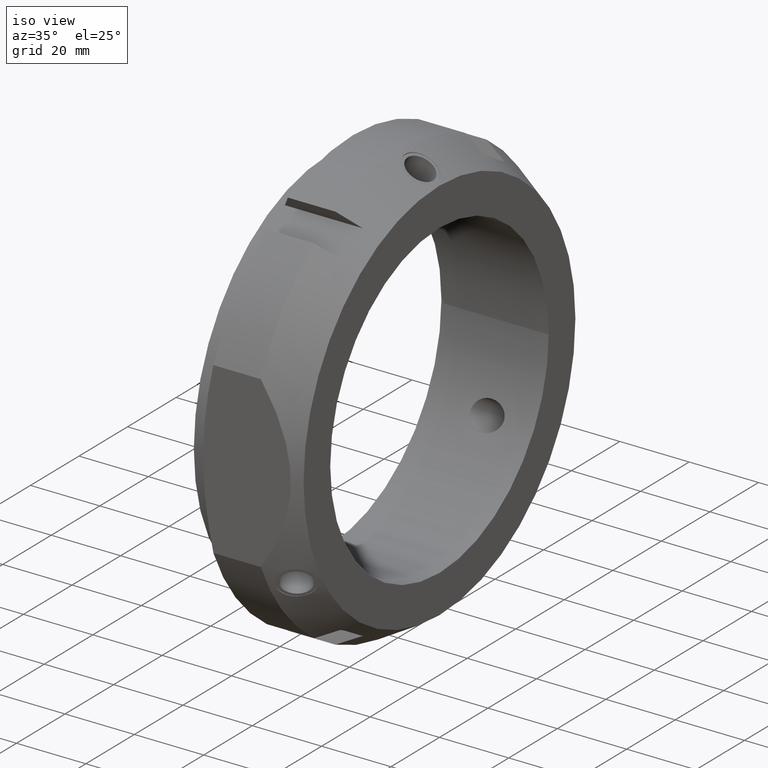
[diagram: clean part render]
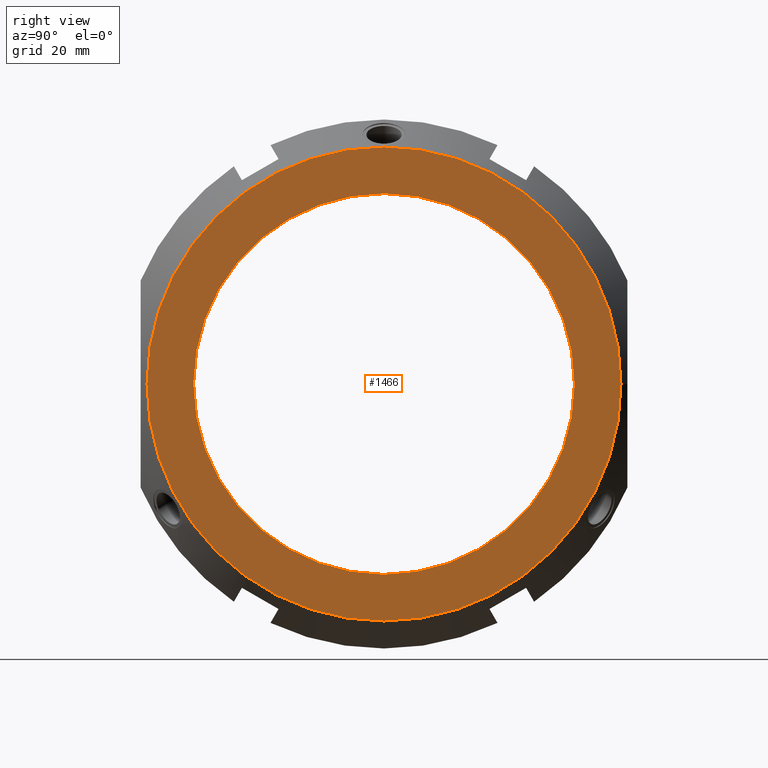
[diagram: tour spotlight — one face highlighted and labeled with its STEP entity id]
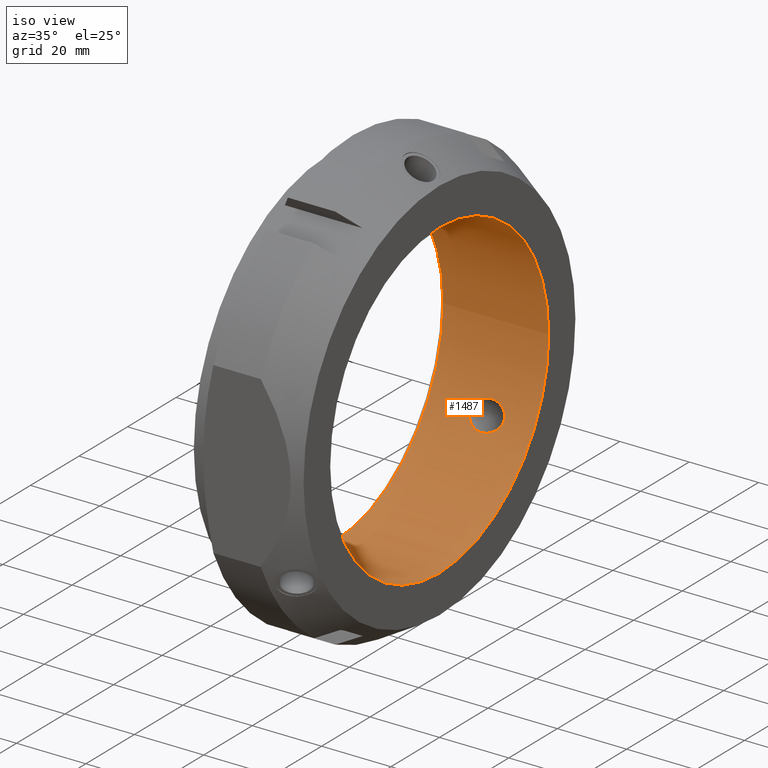
[diagram: tour spotlight — one face highlighted and labeled with its STEP entity id]
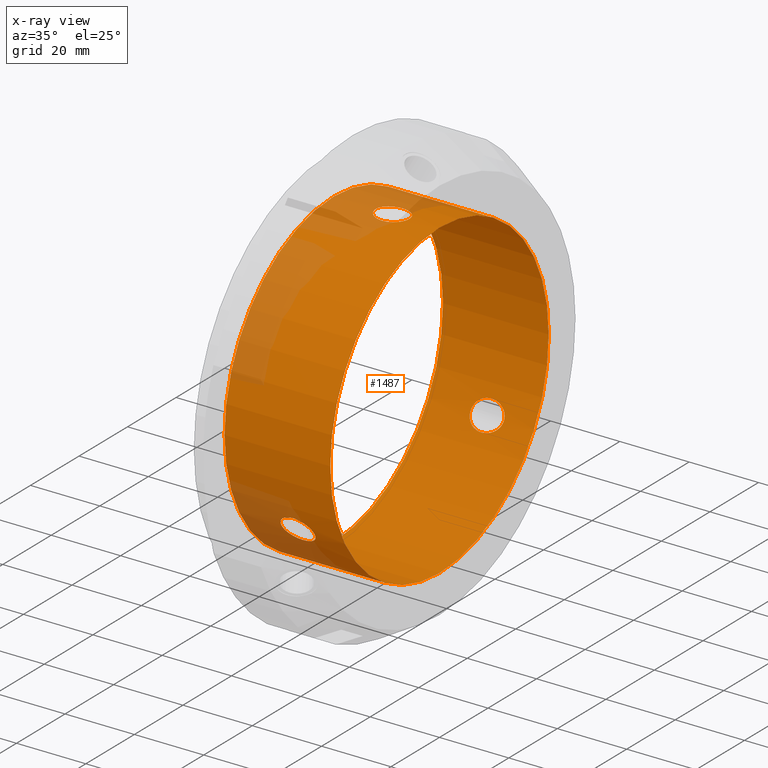
[diagram: x-ray of the same camera — body ghosted, this tour face saturated]
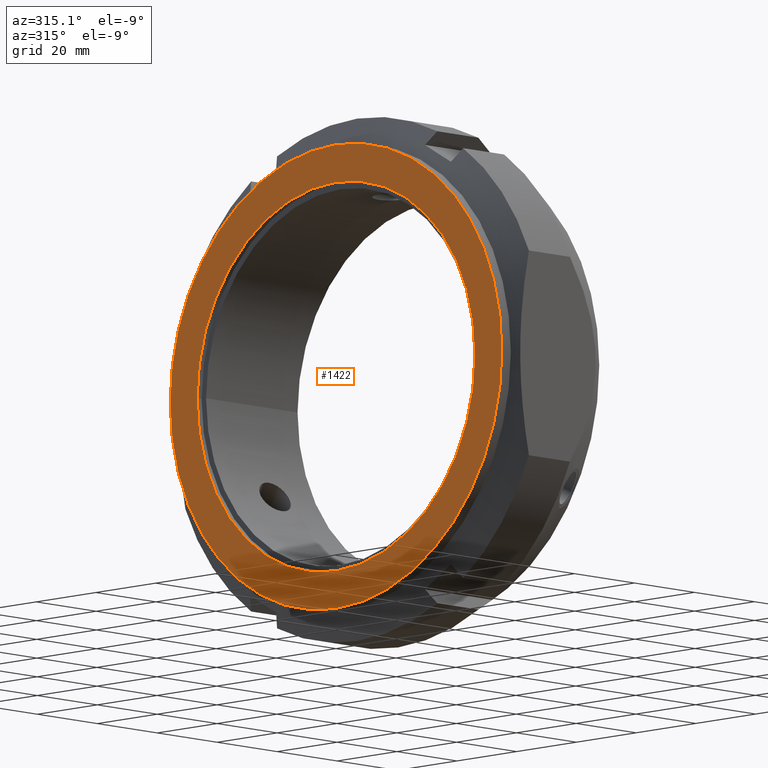
[diagram: tour spotlight — one face highlighted and labeled with its STEP entity id]
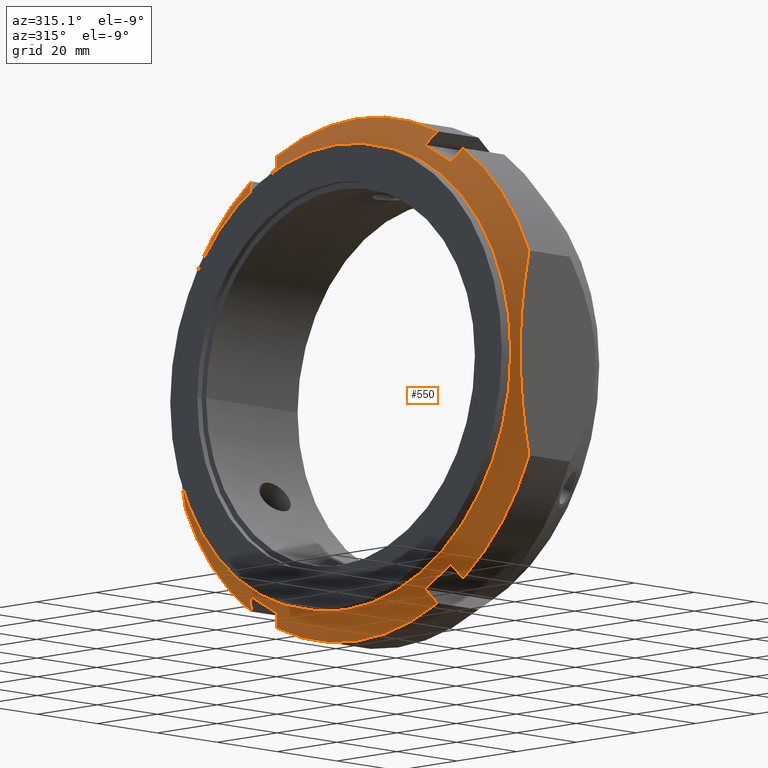
[diagram: tour spotlight — one face highlighted and labeled with its STEP entity id]
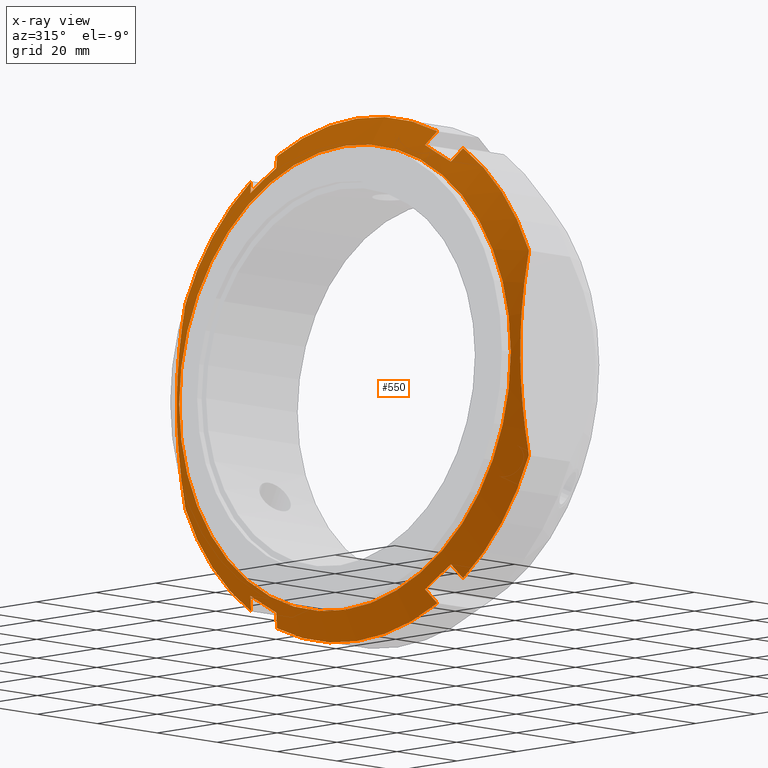
[diagram: x-ray of the same camera — body ghosted, this tour face saturated]
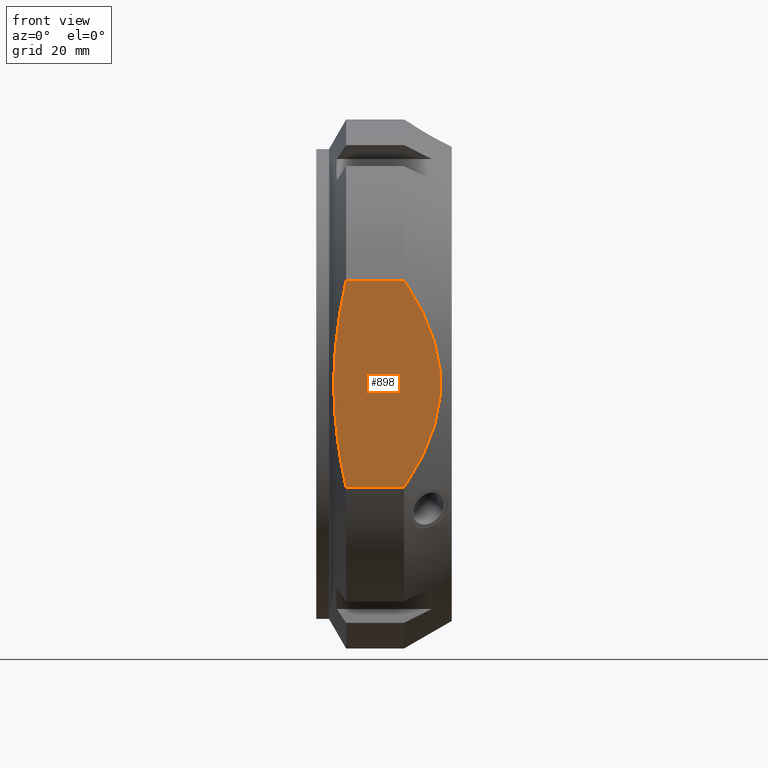
[diagram: tour spotlight — one face highlighted and labeled with its STEP entity id]
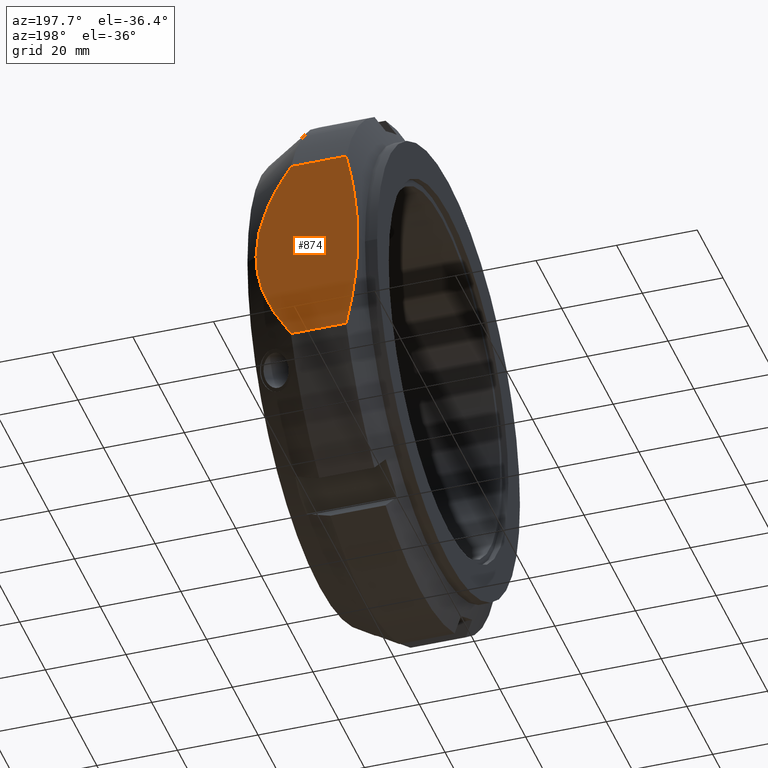
[diagram: tour spotlight — one face highlighted and labeled with its STEP entity id]
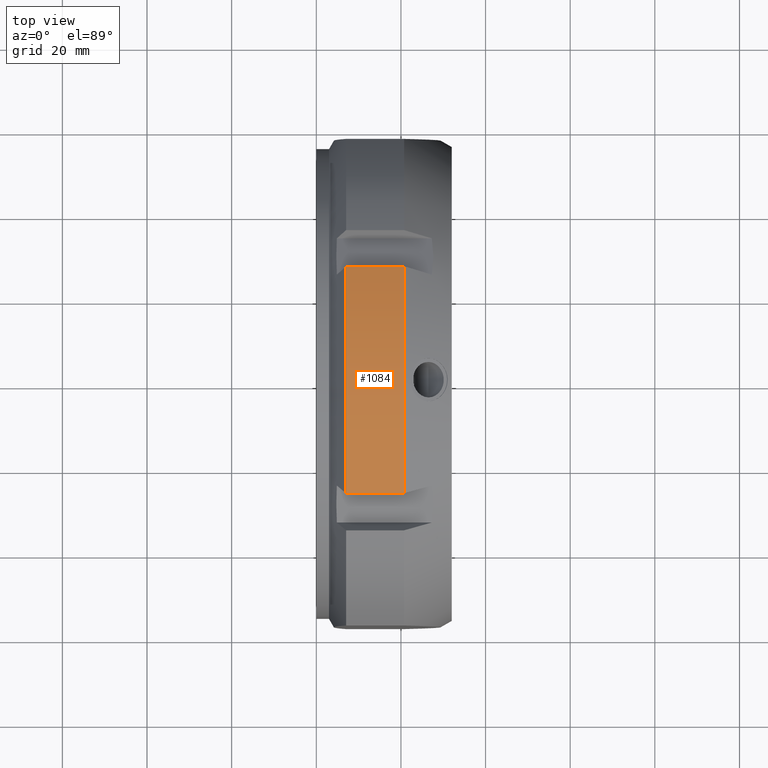
[diagram: tour spotlight — one face highlighted and labeled with its STEP entity id]
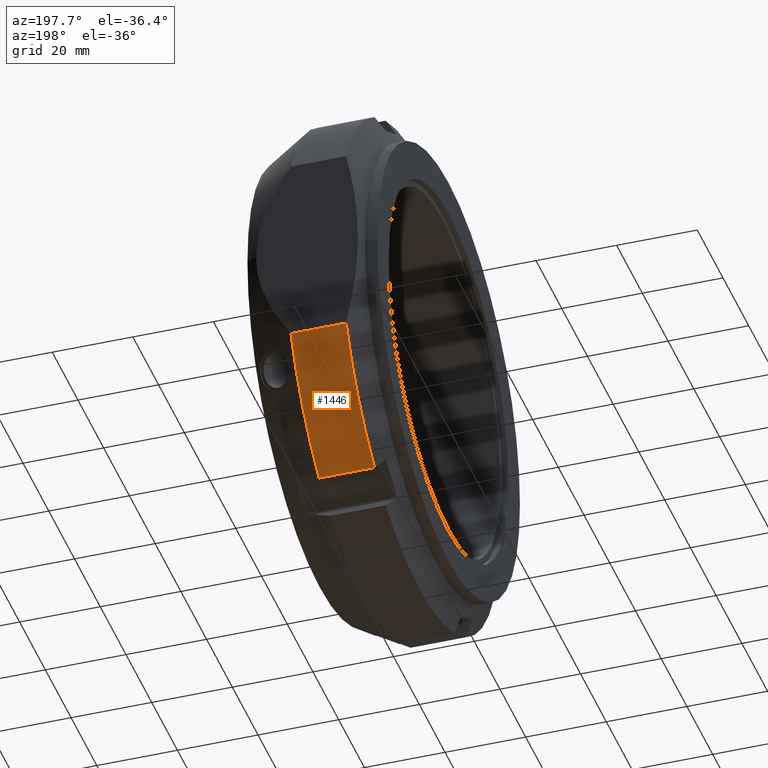
[diagram: tour spotlight — one face highlighted and labeled with its STEP entity id]
A machine part: a face-by-face anatomy tour. The part has 37 B-rep faces; the first image is the clean iso view, then the 8 largest visible faces are spotlighted one at a time (largest first), each with its STEP entity span.

Face 1 — right view, entity #1466. In plain terms, the highlighted planar face has unit normal (1, 0, 0).
Definition (entity closure, byte-faithful):
#938=CARTESIAN_POINT('',(31.999999999999989,56.000000000000007,0.0));
#939=VERTEX_POINT('',#938);
#940=CARTESIAN_POINT('',(31.999999999999989,0.0,0.0));
#941=DIRECTION('',(1.0,0.0,0.0));
#942=DIRECTION('',(0.0,1.0,0.0));
#943=AXIS2_PLACEMENT_3D('',#940,#941,#942);
#944=CIRCLE('',#943,56.000000000000007);
#945=EDGE_CURVE('',#939,#939,#944,.T.);
#1447=CARTESIAN_POINT('',(31.999999999999989,50.500000000000007,0.0));
#1448=DIRECTION('',(1.0,0.0,0.0));
#1449=DIRECTION('',(0.0,0.0,-1.0));
#1450=AXIS2_PLACEMENT_3D('',#1447,#1448,#1449);
#1451=PLANE('',#1450);
#1452=ORIENTED_EDGE('',*,*,#945,.T.);
#1453=EDGE_LOOP('',(#1452));
#1454=FACE_OUTER_BOUND('',#1453,.T.);
#1455=CARTESIAN_POINT('',(31.999999999999989,45.0,0.0));
#1456=VERTEX_POINT('',#1455);
#1457=CARTESIAN_POINT('',(31.999999999999989,0.0,0.0));
#1458=DIRECTION('',(1.0,0.0,0.0));
#1459=DIRECTION('',(0.0,1.0,0.0));
#1460=AXIS2_PLACEMENT_3D('',#1457,#1458,#1459);
#1461=CIRCLE('',#1460,45.0);
#1462=EDGE_CURVE('',#1456,#1456,#1461,.T.);
#1463=ORIENTED_EDGE('',*,*,#1462,.F.);
#1464=EDGE_LOOP('',(#1463));
#1465=FACE_BOUND('',#1464,.T.);
#1466=ADVANCED_FACE('',(#1454,#1465),#1451,.T.);

Face 2 — iso view, entity #1487. An x-ray twin of the same camera follows (body ghosted, this face saturated) — the face is partly hidden behind the body. In plain terms, the highlighted cylindrical surface (bore or boss wall) has radius 45 mm, axis along (1, 0, 0).
Definition (entity closure, byte-faithful):
#1090=CARTESIAN_POINT('',(18.368002474099164,40.896003711148722,-18.775432896679366));
#1091=VERTEX_POINT('',#1090);
#1092=CARTESIAN_POINT('',(18.368002474099164,40.896003711148722,-18.775432896679366));
#1093=CARTESIAN_POINT('',(18.96680388677947,40.896003711148722,-18.775432896679366));
#1094=CARTESIAN_POINT('',(19.611155074245769,40.853826474595451,-18.868214960374004));
#1095=CARTESIAN_POINT('',(20.820477676763005,40.674783163468788,-19.251147711162591));
#1096=CARTESIAN_POINT('',(21.385471448853718,40.537575629816132,-19.541068030448166));
#1097=CARTESIAN_POINT('',(22.264662890841819,40.211127066054345,-20.203718014746237));
#1098=CARTESIAN_POINT('',(22.651019512990722,40.00528452057879,-20.611705088451412));
#1099=CARTESIAN_POINT('',(23.177631100391469,39.5231338797999,-21.521781198993537));
#1100=CARTESIAN_POINT('',(23.316647968265482,39.245905171329511,-22.024098254227145));
#1101=CARTESIAN_POINT('',(23.316647968265482,38.709033089293676,-22.953987977478498));
#1102=CARTESIAN_POINT('',(23.189932319263441,38.425336776092564,-23.425223165847822));
#1103=CARTESIAN_POINT('',(22.704986786179091,37.897963783409367,-24.269155870931087));
#1104=CARTESIAN_POINT('',(22.347945479975294,37.65449878975452,-24.642668029173571));
#1105=CARTESIAN_POINT('',(21.492860729635023,37.230007877335801,-25.280423644847943));
#1106=CARTESIAN_POINT('',(20.912370076078087,37.033526621451209,-25.565015195072661));
#1107=CARTESIAN_POINT('',(19.661901036169233,36.772290543542518,-25.939366682661952));
#1108=CARTESIAN_POINT('',(18.991865362355966,36.708003711148713,-26.029261678777821));
#1109=CARTESIAN_POINT('',(17.766720556365058,36.708003711148713,-26.029261678777821));
#1110=CARTESIAN_POINT('',(17.119670879997855,36.768090637763819,-25.945266801733737));
#1111=CARTESIAN_POINT('',(15.919093944900064,37.022478794806673,-25.580958198910277));
#1112=CARTESIAN_POINT('',(15.365754979470747,37.216688365938715,-25.299960301400588));
#1113=CARTESIAN_POINT('',(14.548439994724951,37.643449260062397,-24.659651414139539));
#1114=CARTESIAN_POINT('',(14.210611589867227,37.892033344984753,-24.27853645333867));
#1115=CARTESIAN_POINT('',(13.758760603790851,38.42579011830076,-23.424606229578849));
#1116=CARTESIAN_POINT('',(13.644876258800863,38.710507878968016,-22.951433566832058));
#1117=CARTESIAN_POINT('',(13.644876258800863,39.231778461631436,-22.048566433167977));
#1118=CARTESIAN_POINT('',(13.758760603790849,39.499199127612869,-21.565407288148123));
#1119=CARTESIAN_POINT('',(14.210611589867227,39.971846007790205,-20.67619525113453));
#1120=CARTESIAN_POINT('',(14.548439994724944,40.177609203144883,-20.270357638214826));
#1121=CARTESIAN_POINT('',(15.365754979470745,40.518752518720063,-19.580617418931428));
#1122=CARTESIAN_POINT('',(15.919093944900066,40.664999050807431,-19.27192804791817));
#1123=CARTESIAN_POINT('',(17.119670879997855,40.853305477148339,-18.869467140085419));
#1124=CARTESIAN_POINT('',(17.766720556365058,40.89600371114873,-18.775432896679366));
#1125=CARTESIAN_POINT('',(18.368002474099164,40.89600371114873,-18.775432896679366));
#1126=B_SPLINE_CURVE_WITH_KNOTS('',3,(#1092,#1093,#1094,#1095,#1096,#1097,#1098,#1099,#1100,#1101,#1102,#1103,#1104,#1105,#1106,#1107,#1108,#1109,#1110,#1111,#1112,#1113,#1114,#1115,#1116,#1117,#1118,#1119,#1120,#1121,#1122,#1123,#1124,#1125),.UNSPECIFIED.,.T.,.U.,(4,2,2,2,2,2,2,2,2,2,2,2,2,2,2,2,4),(0.0,0.179640423804092,0.359280847608184,0.524138048226052,0.68899524884392,0.846261297447552,1.003527346051184,1.190686212528225,1.377845079005266,1.558229654325498,1.738614229645731,1.894995404444758,2.051376579243786,2.207757754042814,2.364138928841842,2.544523504162075,2.724908079482307),.UNSPECIFIED.);
#1127=EDGE_CURVE('',#1091,#1091,#1126,.T.);
#1180=CARTESIAN_POINT('',(18.368002474099171,-36.708003711148734,-26.029261678777793));
#1181=VERTEX_POINT('',#1180);
#1182=CARTESIAN_POINT('',(18.368002474099171,-36.708003711148734,-26.029261678777793));
#1183=CARTESIAN_POINT('',(18.991865362355973,-36.708003711148734,-26.029261678777793));
#1184=CARTESIAN_POINT('',(19.661901036169244,-36.772290543542539,-25.939366682661923));
#1185=CARTESIAN_POINT('',(20.912370076078094,-37.03352662145123,-25.565015195072633));
#1186=CARTESIAN_POINT('',(21.492860729635034,-37.230007877335829,-25.280423644847918));
#1187=CARTESIAN_POINT('',(22.347945479975305,-37.654498789754548,-24.642668029173542));
#1188=CARTESIAN_POINT('',(22.704986786179099,-37.897963783409381,-24.269155870931055));
#1189=CARTESIAN_POINT('',(23.189932319263441,-38.425336776092578,-23.425223165847797));
#1190=CARTESIAN_POINT('',(23.316647968265485,-38.709033089293698,-22.953987977478466));
#1191=CARTESIAN_POINT('',(23.316647968265485,-39.233253251305804,-22.046012022521502));
#1192=CARTESIAN_POINT('',(23.189932319263441,-39.499506738990227,-21.564706214144692));
#1193=CARTESIAN_POINT('',(22.704986786179091,-39.966687404335246,-20.686021452669586));
#1194=CARTESIAN_POINT('',(22.347945479975294,-40.168425925168179,-20.288418504111043));
#1195=CARTESIAN_POINT('',(21.492860729635023,-40.508493033539011,-19.601920782443607));
#1196=CARTESIAN_POINT('',(20.912370076078087,-40.656715917793719,-19.289467248367721));
#1197=CARTESIAN_POINT('',(19.661901036169237,-40.850295777036187,-18.87605442471914));
#1198=CARTESIAN_POINT('',(18.991865362355973,-40.896003711148737,-18.775432896679337));
#1199=CARTESIAN_POINT('',(17.766720556365062,-40.896003711148737,-18.775432896679337));
#1200=CARTESIAN_POINT('',(17.119670879997859,-40.853305477148361,-18.869467140085387));
#1201=CARTESIAN_POINT('',(15.919093944900066,-40.664999050807452,-19.271928047918138));
#1202=CARTESIAN_POINT('',(15.365754979470749,-40.518752518720063,-19.5806174189314));
#1203=CARTESIAN_POINT('',(14.548439994724948,-40.177609203144904,-20.270357638214801));
#1204=CARTESIAN_POINT('',(14.210611589867231,-39.971846007790212,-20.676195251134502));
#1205=CARTESIAN_POINT('',(13.758760603790851,-39.499199127612876,-21.565407288148094));
#1206=CARTESIAN_POINT('',(13.644876258800871,-39.231778461631464,-22.048566433167949));
#1207=CARTESIAN_POINT('',(13.644876258800869,-38.710507878968038,-22.951433566832034));
#1208=CARTESIAN_POINT('',(13.758760603790854,-38.425790118300782,-23.424606229578817));
#1209=CARTESIAN_POINT('',(14.210611589867231,-37.892033344984775,-24.278536453338646));
#1210=CARTESIAN_POINT('',(14.548439994724948,-37.643449260062418,-24.659651414139514));
#1211=CARTESIAN_POINT('',(15.365754979470747,-37.216688365938737,-25.299960301400567));
#1212=CARTESIAN_POINT('',(15.919093944900069,-37.022478794806695,-25.580958198910245));
#1213=CARTESIAN_POINT('',(17.119670879997862,-36.768090637763834,-25.945266801733705));
#1214=CARTESIAN_POINT('',(17.766720556365062,-36.708003711148734,-26.029261678777797));
#1215=CARTESIAN_POINT('',(18.368002474099171,-36.708003711148734,-26.029261678777797));
#1216=B_SPLINE_CURVE_WITH_KNOTS('',3,(#1182,#1183,#1184,#1185,#1186,#1187,#1188,#1189,#1190,#1191,#1192,#1193,#1194,#1195,#1196,#1197,#1198,#1199,#1200,#1201,#1202,#1203,#1204,#1205,#1206,#1207,#1208,#1209,#1210,#1211,#1212,#1213,#1214,#1215),.UNSPECIFIED.,.T.,.U.,(4,2,2,2,2,2,2,2,2,2,2,2,2,2,2,2,4),(0.0,0.187158866477041,0.374317732954082,0.531583781557714,0.688849830161346,0.846115878764979,1.003381927368611,1.190540793845651,1.377699660322691,1.558084235642924,1.738468810963157,1.894849985762185,2.051231160561213,2.20761233536024,2.363993510159268,2.544378085479501,2.724762660799733),.UNSPECIFIED.);
#1217=EDGE_CURVE('',#1181,#1181,#1216,.T.);
#1270=CARTESIAN_POINT('',(18.368002474099171,-4.188,44.804694575457155));
#1271=VERTEX_POINT('',#1270);
#1272=CARTESIAN_POINT('',(18.368002474099171,-4.188,44.804694575457155));
#1273=CARTESIAN_POINT('',(18.991865362355973,-4.188,44.804694575457155));
#1274=CARTESIAN_POINT('',(19.661901036169244,-4.078005233493646,44.815421107381084));
#1275=CARTESIAN_POINT('',(20.912370076078091,-3.623189296342482,44.854482443440375));
#1276=CARTESIAN_POINT('',(21.492860729635037,-3.278485156203195,44.882344427291549));
#1277=CARTESIAN_POINT('',(22.347945479975309,-2.513927135413639,44.931086533284613));
#1278=CARTESIAN_POINT('',(22.704986786179091,-2.068723620925873,44.955177323600665));
#1279=CARTESIAN_POINT('',(23.189932319263441,-1.074169962897646,44.989929379992518));
#1280=CARTESIAN_POINT('',(23.316647968265485,-0.524220162012107,45.0));
#1281=CARTESIAN_POINT('',(23.316647968265485,0.524220162012106,45.0));
#1282=CARTESIAN_POINT('',(23.189932319263441,1.074169962897646,44.989929379992518));
#1283=CARTESIAN_POINT('',(22.704986786179091,2.068723620925872,44.955177323600665));
#1284=CARTESIAN_POINT('',(22.347945479975309,2.513927135413639,44.931086533284613));
#1285=CARTESIAN_POINT('',(21.492860729635037,3.278485156203195,44.882344427291549));
#1286=CARTESIAN_POINT('',(20.912370076078091,3.623189296342482,44.854482443440375));
#1287=CARTESIAN_POINT('',(19.661901036169244,4.078005233493646,44.815421107381084));
#1288=CARTESIAN_POINT('',(18.991865362355973,4.188,44.804694575457155));
#1289=CARTESIAN_POINT('',(17.766720556365065,4.188000000000001,44.804694575457155));
#1290=CARTESIAN_POINT('',(17.119670879997862,4.085214839384525,44.814733941819121));
#1291=CARTESIAN_POINT('',(15.919093944900073,3.642520256000764,44.852886246828405));
#1292=CARTESIAN_POINT('',(15.365754979470751,3.302064152781345,44.880577720331999));
#1293=CARTESIAN_POINT('',(14.548439994724953,2.534159943082487,44.930009052354336));
#1294=CARTESIAN_POINT('',(14.210611589867234,2.079812662805446,44.954731704473161));
#1295=CARTESIAN_POINT('',(13.758760603790858,1.073409009312102,44.990013517726936));
#1296=CARTESIAN_POINT('',(13.644876258800869,0.521270582663428,45.0));
#1297=CARTESIAN_POINT('',(13.644876258800869,-0.538823214318436,45.0));
#1298=CARTESIAN_POINT('',(13.76646722392794,-1.107999042300992,44.989318428746692));
#1299=CARTESIAN_POINT('',(14.246059370267826,-2.139672810594604,44.952065969848761));
#1300=CARTESIAN_POINT('',(14.603954150568343,-2.602243316961449,44.926137801471455));
#1301=CARTESIAN_POINT('',(15.439417992272944,-3.350448686399184,44.876792884315023));
#1302=CARTESIAN_POINT('',(15.982688765695007,-3.672600700259783,44.850374760406488));
#1303=CARTESIAN_POINT('',(17.155184838386617,-4.0910924552728,44.814139226938238));
#1304=CARTESIAN_POINT('',(17.784218888821048,-4.188,44.804694575457162));
#1305=CARTESIAN_POINT('',(18.368002474099175,-4.188,44.804694575457162));
#1306=B_SPLINE_CURVE_WITH_KNOTS('',3,(#1272,#1273,#1274,#1275,#1276,#1277,#1278,#1279,#1280,#1281,#1282,#1283,#1284,#1285,#1286,#1287,#1288,#1289,#1290,#1291,#1292,#1293,#1294,#1295,#1296,#1297,#1298,#1299,#1300,#1301,#1302,#1303,#1304,#1305),.UNSPECIFIED.,.T.,.U.,(4,2,2,2,2,2,2,2,2,2,2,2,2,2,2,2,4),(0.0,0.187158866477041,0.374317732954082,0.531583781557714,0.688849830161346,0.846115878764978,1.00338192736861,1.190540793845652,1.377699660322693,1.558084235642925,1.738468810963158,1.894849985762186,2.051231160561214,2.212878124856745,2.374525089152276,2.549660164735714,2.724795240319152),.UNSPECIFIED.);
#1307=EDGE_CURVE('',#1271,#1271,#1306,.T.);
#1371=CARTESIAN_POINT('',(1.499999999999988,45.0,0.0));
#1372=VERTEX_POINT('',#1371);
#1373=CARTESIAN_POINT('',(1.499999999999988,0.0,0.0));
#1374=DIRECTION('',(1.0,0.0,0.0));
#1375=DIRECTION('',(0.0,1.0,0.0));
#1376=AXIS2_PLACEMENT_3D('',#1373,#1374,#1375);
#1377=CIRCLE('',#1376,45.0);
#1378=EDGE_CURVE('',#1372,#1372,#1377,.T.);
#1455=CARTESIAN_POINT('',(31.999999999999989,45.0,0.0));
#1456=VERTEX_POINT('',#1455);
#1457=CARTESIAN_POINT('',(31.999999999999989,0.0,0.0));
#1458=DIRECTION('',(1.0,0.0,0.0));
#1459=DIRECTION('',(0.0,1.0,0.0));
#1460=AXIS2_PLACEMENT_3D('',#1457,#1458,#1459);
#1461=CIRCLE('',#1460,45.0);
#1462=EDGE_CURVE('',#1456,#1456,#1461,.T.);
#1467=CARTESIAN_POINT('',(16.749999999999986,0.0,0.0));
#1468=DIRECTION('',(1.0,0.0,0.0));
#1469=DIRECTION('',(0.0,1.0,0.0));
#1470=AXIS2_PLACEMENT_3D('',#1467,#1468,#1469);
#1471=CYLINDRICAL_SURFACE('',#1470,45.0);
#1472=ORIENTED_EDGE('',*,*,#1378,.F.);
#1473=EDGE_LOOP('',(#1472));
#1474=FACE_OUTER_BOUND('',#1473,.T.);
#1475=ORIENTED_EDGE('',*,*,#1127,.T.);
#1476=EDGE_LOOP('',(#1475));
#1477=FACE_BOUND('',#1476,.T.);
#1478=ORIENTED_EDGE('',*,*,#1217,.T.);
#1479=EDGE_LOOP('',(#1478));
#1480=FACE_BOUND('',#1479,.T.);
#1481=ORIENTED_EDGE('',*,*,#1307,.T.);
#1482=EDGE_LOOP('',(#1481));
#1483=FACE_BOUND('',#1482,.T.);
#1484=ORIENTED_EDGE('',*,*,#1462,.T.);
#1485=EDGE_LOOP('',(#1484));
#1486=FACE_BOUND('',#1485,.T.);
#1487=ADVANCED_FACE('',(#1474,#1477,#1480,#1483,#1486),#1471,.F.);

Face 3 — auxiliary view, entity #1422. In plain terms, the highlighted planar face has unit normal (-1, 0, 0).
Definition (entity closure, byte-faithful):
#1388=CARTESIAN_POINT('',(-1.332268E-014,46.5,0.0));
#1389=VERTEX_POINT('',#1388);
#1390=CARTESIAN_POINT('',(-1.332268E-014,0.0,0.0));
#1391=DIRECTION('',(1.0,0.0,0.0));
#1392=DIRECTION('',(0.0,1.0,0.0));
#1393=AXIS2_PLACEMENT_3D('',#1390,#1391,#1392);
#1394=CIRCLE('',#1393,46.5);
#1395=EDGE_CURVE('',#1389,#1389,#1394,.T.);
#1403=CARTESIAN_POINT('',(-1.554312E-014,51.000000000000007,0.0));
#1404=DIRECTION('',(-1.0,0.0,0.0));
#1405=DIRECTION('',(0.0,0.0,1.0));
#1406=AXIS2_PLACEMENT_3D('',#1403,#1404,#1405);
#1407=PLANE('',#1406);
#1408=CARTESIAN_POINT('',(-1.776357E-014,55.500000000000007,0.0));
#1409=VERTEX_POINT('',#1408);
#1410=CARTESIAN_POINT('',(-1.776357E-014,0.0,0.0));
#1411=DIRECTION('',(1.0,0.0,0.0));
#1412=DIRECTION('',(0.0,1.0,0.0));
#1413=AXIS2_PLACEMENT_3D('',#1410,#1411,#1412);
#1414=CIRCLE('',#1413,55.500000000000007);
#1415=EDGE_CURVE('',#1409,#1409,#1414,.T.);
#1416=ORIENTED_EDGE('',*,*,#1415,.F.);
#1417=EDGE_LOOP('',(#1416));
#1418=FACE_OUTER_BOUND('',#1417,.T.);
#1419=ORIENTED_EDGE('',*,*,#1395,.T.);
#1420=EDGE_LOOP('',(#1419));
#1421=FACE_BOUND('',#1420,.T.);
#1422=ADVANCED_FACE('',(#1418,#1421),#1407,.T.);

Face 4 — auxiliary view, entity #550. An x-ray twin of the same camera follows (body ghosted, this face saturated) — the face is partly hidden behind the body. In plain terms, the highlighted conical surface has half-angle 60 deg.
Definition (entity closure, byte-faithful):
#73=CARTESIAN_POINT('',(4.855191768571913,33.580127018922141,-48.162486121389691));
#74=VERTEX_POINT('',#73);
#75=CARTESIAN_POINT('',(4.855191768571915,24.919872981077752,-53.162486121389691));
#76=VERTEX_POINT('',#75);
#77=CARTESIAN_POINT('',(4.855191768571913,33.580127018922141,-48.162486121389691));
#78=CARTESIAN_POINT('',(4.609357177907528,29.249999999902883,-50.662486121445738));
#79=CARTESIAN_POINT('',(4.855191768571915,24.919872981077752,-53.162486121389691));
#87=(BOUNDED_CURVE()B_SPLINE_CURVE(2,(#77,#78,#79),.UNSPECIFIED.,.F.,.U.)B_SPLINE_CURVE_WITH_KNOTS((3,3),(1.69309888544888,2.731077120694343),.UNSPECIFIED.)CURVE()GEOMETRIC_REPRESENTATION_ITEM()RATIONAL_B_SPLINE_CURVE((1.032306180598916,1.036069887777157,1.032306180598916))REPRESENTATION_ITEM(''));
#88=EDGE_CURVE('',#74,#76,#87,.T.);
#127=CARTESIAN_POINT('',(7.04145188432735,26.819712467020537,-56.453104637268119));
#128=VERTEX_POINT('',#127);
#129=CARTESIAN_POINT('',(4.855191768571915,24.919872981077752,-53.162486121389691));
#130=CARTESIAN_POINT('',(5.913938098493393,25.840117148710327,-54.756395775098234));
#131=CARTESIAN_POINT('',(7.04145188432735,26.819712467020533,-56.453104637268112));
#139=(BOUNDED_CURVE()B_SPLINE_CURVE(2,(#129,#130,#131),.UNSPECIFIED.,.F.,.U.)B_SPLINE_CURVE_WITH_KNOTS((3,3),(0.695274858773223,1.111675363263336),.UNSPECIFIED.)CURVE()GEOMETRIC_REPRESENTATION_ITEM()RATIONAL_B_SPLINE_CURVE((1.001642168767385,1.001312832283511,1.0))REPRESENTATION_ITEM(''));
#140=EDGE_CURVE('',#76,#128,#139,.T.);
#172=CARTESIAN_POINT('',(7.041451884327343,35.479966504864912,-51.453104637268126));
#173=VERTEX_POINT('',#172);
#174=CARTESIAN_POINT('',(7.04145188432735,35.479966504864919,-51.45310463726814));
#175=CARTESIAN_POINT('',(5.913938098352931,34.500371186432545,-49.756395774886649));
#176=CARTESIAN_POINT('',(4.855191768571913,33.580127018922141,-48.162486121389691));
#184=(BOUNDED_CURVE()B_SPLINE_CURVE(2,(#174,#175,#176),.UNSPECIFIED.,.F.,.U.)B_SPLINE_CURVE_WITH_KNOTS((3,3),(0.0,0.41640050440789),.UNSPECIFIED.)CURVE()GEOMETRIC_REPRESENTATION_ITEM()RATIONAL_B_SPLINE_CURVE((1.0,1.001312832310239,1.001642168801012))REPRESENTATION_ITEM(''));
#185=EDGE_CURVE('',#173,#74,#184,.T.);
#217=CARTESIAN_POINT('',(4.85519176857192,-33.580127018922205,-48.162486121389662));
#218=VERTEX_POINT('',#217);
#219=CARTESIAN_POINT('',(7.041451884327348,-35.47996650486499,-51.453104637268083));
#220=VERTEX_POINT('',#219);
#221=CARTESIAN_POINT('',(4.85519176857192,-33.580127018922205,-48.162486121389662));
#222=CARTESIAN_POINT('',(5.913938098776366,-34.500371186800891,-49.756395775524467));
#223=CARTESIAN_POINT('',(7.04145188432735,-35.47996650486499,-51.453104637268083));
#231=(BOUNDED_CURVE()B_SPLINE_CURVE(2,(#221,#222,#223),.UNSPECIFIED.,.F.,.U.)B_SPLINE_CURVE_WITH_KNOTS((3,3),(0.695274858594388,1.111675363263336),.UNSPECIFIED.)CURVE()GEOMETRIC_REPRESENTATION_ITEM()RATIONAL_B_SPLINE_CURVE((1.001642168720913,1.001312832246696,1.0))REPRESENTATION_ITEM(''));
#232=EDGE_CURVE('',#218,#220,#231,.T.);
#271=CARTESIAN_POINT('',(7.041451884327347,-26.819712467020601,-56.45310463726809));
#272=VERTEX_POINT('',#271);
#273=CARTESIAN_POINT('',(4.855191768571918,-24.919872981077816,-53.162486121389662));
#274=VERTEX_POINT('',#273);
#275=CARTESIAN_POINT('',(7.04145188432735,-26.819712467020604,-56.45310463726809));
#276=CARTESIAN_POINT('',(5.91393809859226,-25.840117148796374,-54.756395775247142));
#277=CARTESIAN_POINT('',(4.855191768571918,-24.919872981077816,-53.162486121389662));
#285=(BOUNDED_CURVE()B_SPLINE_CURVE(2,(#275,#276,#277),.UNSPECIFIED.,.F.,.U.)B_SPLINE_CURVE_WITH_KNOTS((3,3),(0.0,0.416400504554858),.UNSPECIFIED.)CURVE()GEOMETRIC_REPRESENTATION_ITEM()RATIONAL_B_SPLINE_CURVE((1.0,1.001312832273567,1.001642168754793))REPRESENTATION_ITEM(''));
#286=EDGE_CURVE('',#272,#274,#285,.T.);
#325=CARTESIAN_POINT('',(4.855191768571918,-24.919872981077816,-53.162486121389662));
#326=CARTESIAN_POINT('',(4.609357177907533,-29.250000000097085,-50.662486121333615));
#327=CARTESIAN_POINT('',(4.85519176857192,-33.580127018922205,-48.162486121389662));
#335=(BOUNDED_CURVE()B_SPLINE_CURVE(2,(#325,#326,#327),.UNSPECIFIED.,.F.,.U.)B_SPLINE_CURVE_WITH_KNOTS((3,3),(1.693098885448872,2.731077120694336),.UNSPECIFIED.)CURVE()GEOMETRIC_REPRESENTATION_ITEM()RATIONAL_B_SPLINE_CURVE((1.032306180598918,1.036069887777159,1.032306180598918))REPRESENTATION_ITEM(''));
#336=EDGE_CURVE('',#274,#218,#335,.T.);
#356=CARTESIAN_POINT('',(5.020725942163665,0.0,0.0));
#357=DIRECTION('',(1.0,0.0,0.0));
#358=DIRECTION('',(0.0,1.0,0.0));
#359=AXIS2_PLACEMENT_3D('',#356,#357,#358);
#360=CONICAL_SURFACE('',#359,59.0,60.000000000000071);
#361=CARTESIAN_POINT('',(2.999999999999983,55.500000000000007,0.0));
#362=VERTEX_POINT('',#361);
#363=CARTESIAN_POINT('',(2.999999999999983,0.0,0.0));
#364=DIRECTION('',(1.0,0.0,0.0));
#365=DIRECTION('',(0.0,1.0,0.0));
#366=AXIS2_PLACEMENT_3D('',#363,#364,#365);
#367=CIRCLE('',#366,55.500000000000007);
#368=EDGE_CURVE('',#362,#362,#367,.T.);
#369=ORIENTED_EDGE('',*,*,#368,.T.);
#370=EDGE_LOOP('',(#369));
#371=FACE_OUTER_BOUND('',#370,.T.);
#372=ORIENTED_EDGE('',*,*,#185,.T.);
#373=ORIENTED_EDGE('',*,*,#88,.T.);
#374=ORIENTED_EDGE('',*,*,#140,.T.);
#375=CARTESIAN_POINT('',(7.041451884327348,0.0,0.0));
#376=DIRECTION('',(1.0,0.0,0.0));
#377=DIRECTION('',(0.0,1.0,0.0));
#378=AXIS2_PLACEMENT_3D('',#375,#376,#377);
#379=CIRCLE('',#378,62.5);
#380=EDGE_CURVE('',#272,#128,#379,.T.);
#381=ORIENTED_EDGE('',*,*,#380,.F.);
#382=ORIENTED_EDGE('',*,*,#286,.T.);
#383=ORIENTED_EDGE('',*,*,#336,.T.);
#384=ORIENTED_EDGE('',*,*,#232,.T.);
#385=CARTESIAN_POINT('',(7.041451884327348,-57.500000000000028,-24.49489742783172));
#386=VERTEX_POINT('',#385);
#387=CARTESIAN_POINT('',(7.041451884327348,0.0,0.0));
#388=DIRECTION('',(1.0,0.0,0.0));
#389=DIRECTION('',(0.0,1.0,0.0));
#390=AXIS2_PLACEMENT_3D('',#387,#388,#389);
#391=CIRCLE('',#390,62.5);
#392=EDGE_CURVE('',#386,#220,#391,.T.);
#393=ORIENTED_EDGE('',*,*,#392,.F.);
#394=CARTESIAN_POINT('',(7.041451884327348,-57.500000000000043,24.494897427831667));
#395=VERTEX_POINT('',#394);
#396=CARTESIAN_POINT('',(7.041451884327348,-57.500000000000028,-24.494897427831724));
#397=CARTESIAN_POINT('',(1.498889300106993,-57.500000000000036,3.181199E-014));
#398=CARTESIAN_POINT('',(7.04145188432735,-57.500000000000043,24.494897427831681));
#406=(BOUNDED_CURVE()B_SPLINE_CURVE(2,(#396,#397,#398),.UNSPECIFIED.,.F.,.U.)B_SPLINE_CURVE_WITH_KNOTS((3,3),(0.0,4.932882862316231),.UNSPECIFIED.)CURVE()GEOMETRIC_REPRESENTATION_ITEM()RATIONAL_B_SPLINE_CURVE((1.0,1.08695652173913,1.0))REPRESENTATION_ITEM(''));
#407=EDGE_CURVE('',#386,#395,#406,.T.);
#408=ORIENTED_EDGE('',*,*,#407,.T.);
#409=CARTESIAN_POINT('',(7.041451884327348,-35.47996650486499,51.453104637268083));
#410=VERTEX_POINT('',#409);
#411=CARTESIAN_POINT('',(7.041451884327348,0.0,0.0));
#412=DIRECTION('',(1.0,0.0,0.0));
#413=DIRECTION('',(0.0,1.0,0.0));
#414=AXIS2_PLACEMENT_3D('',#411,#412,#413);
#415=CIRCLE('',#414,62.5);
#416=EDGE_CURVE('',#410,#395,#415,.T.);
#417=ORIENTED_EDGE('',*,*,#416,.F.);
#418=CARTESIAN_POINT('',(4.85519176857192,-33.580127018922205,48.162486121389662));
#419=VERTEX_POINT('',#418);
#420=CARTESIAN_POINT('',(7.04145188432735,-35.47996650486499,51.453104637268083));
#421=CARTESIAN_POINT('',(5.913938098776367,-34.500371186800891,49.756395775524467));
#422=CARTESIAN_POINT('',(4.85519176857192,-33.580127018922205,48.162486121389662));
#430=(BOUNDED_CURVE()B_SPLINE_CURVE(2,(#420,#421,#422),.UNSPECIFIED.,.F.,.U.)B_SPLINE_CURVE_WITH_KNOTS((3,3),(0.0,0.416400504668948),.UNSPECIFIED.)CURVE()GEOMETRIC_REPRESENTATION_ITEM()RATIONAL_B_SPLINE_CURVE((1.0,1.001312832246696,1.001642168720913))REPRESENTATION_ITEM(''));
#431=EDGE_CURVE('',#410,#419,#430,.T.);
#432=ORIENTED_EDGE('',*,*,#431,.T.);
#433=CARTESIAN_POINT('',(4.855191768571918,-24.919872981077816,53.162486121389662));
#434=VERTEX_POINT('',#433);
#435=CARTESIAN_POINT('',(4.85519176857192,-33.580127018922205,48.162486121389662));
#436=CARTESIAN_POINT('',(4.609357177907532,-29.249999999902947,50.662486121445703));
#437=CARTESIAN_POINT('',(4.855191768571918,-24.919872981077816,53.162486121389662));
#445=(BOUNDED_CURVE()B_SPLINE_CURVE(2,(#435,#436,#437),.UNSPECIFIED.,.F.,.U.)B_SPLINE_CURVE_WITH_KNOTS((3,3),(1.693098885448869,2.731077120694334),.UNSPECIFIED.)CURVE()GEOMETRIC_REPRESENTATION_ITEM()RATIONAL_B_SPLINE_CURVE((1.032306180598918,1.036069887777159,1.032306180598918))REPRESENTATION_ITEM(''));
#446=EDGE_CURVE('',#419,#434,#445,.T.);
#447=ORIENTED_EDGE('',*,*,#446,.T.);
#448=CARTESIAN_POINT('',(7.041451884327348,-26.819712467020594,56.45310463726809));
#449=VERTEX_POINT('',#448);
#450=CARTESIAN_POINT('',(4.855191768571918,-24.919872981077816,53.162486121389662));
#451=CARTESIAN_POINT('',(5.913938098592261,-25.840117148796374,54.756395775247142));
#452=CARTESIAN_POINT('',(7.04145188432735,-26.819712467020604,56.45310463726809));
#460=(BOUNDED_CURVE()B_SPLINE_CURVE(2,(#450,#451,#452),.UNSPECIFIED.,.F.,.U.)B_SPLINE_CURVE_WITH_KNOTS((3,3),(0.695274858708479,1.111675363263337),.UNSPECIFIED.)CURVE()GEOMETRIC_REPRESENTATION_ITEM()RATIONAL_B_SPLINE_CURVE((1.001642168754793,1.001312832273567,1.0))REPRESENTATION_ITEM(''));
#461=EDGE_CURVE('',#434,#449,#460,.T.);
#462=ORIENTED_EDGE('',*,*,#461,.T.);
#463=CARTESIAN_POINT('',(7.041451884327348,26.819712467020533,56.453104637268119));
#464=VERTEX_POINT('',#463);
#465=CARTESIAN_POINT('',(7.041451884327348,0.0,0.0));
#466=DIRECTION('',(1.0,0.0,0.0));
#467=DIRECTION('',(0.0,1.0,0.0));
#468=AXIS2_PLACEMENT_3D('',#465,#466,#467);
#469=CIRCLE('',#468,62.5);
#470=EDGE_CURVE('',#464,#449,#469,.T.);
#471=ORIENTED_EDGE('',*,*,#470,.F.);
#472=CARTESIAN_POINT('',(4.855191768571915,24.919872981077752,53.162486121389691));
#473=VERTEX_POINT('',#472);
#474=CARTESIAN_POINT('',(7.04145188432735,26.819712467020533,56.453104637268112));
#475=CARTESIAN_POINT('',(5.913938098493389,25.840117148710323,54.756395775098227));
#476=CARTESIAN_POINT('',(4.855191768571915,24.919872981077752,53.162486121389691));
#484=(BOUNDED_CURVE()B_SPLINE_CURVE(2,(#474,#475,#476),.UNSPECIFIED.,.F.,.U.)B_SPLINE_CURVE_WITH_KNOTS((3,3),(0.0,0.416400504490113),.UNSPECIFIED.)CURVE()GEOMETRIC_REPRESENTATION_ITEM()RATIONAL_B_SPLINE_CURVE((1.0,1.001312832283511,1.001642168767385))REPRESENTATION_ITEM(''));
#485=EDGE_CURVE('',#464,#473,#484,.T.);
#486=ORIENTED_EDGE('',*,*,#485,.T.);
#487=CARTESIAN_POINT('',(4.855191768571913,33.580127018922141,48.162486121389691));
#488=VERTEX_POINT('',#487);
#489=CARTESIAN_POINT('',(4.855191768571915,24.919872981077752,53.162486121389691));
#490=CARTESIAN_POINT('',(4.609357177907532,29.250000000097014,50.662486121333643));
#491=CARTESIAN_POINT('',(4.855191768571913,33.580127018922141,48.162486121389691));
#499=(BOUNDED_CURVE()B_SPLINE_CURVE(2,(#489,#490,#491),.UNSPECIFIED.,.F.,.U.)B_SPLINE_CURVE_WITH_KNOTS((3,3),(1.693098885448868,2.731077120694329),.UNSPECIFIED.)CURVE()GEOMETRIC_REPRESENTATION_ITEM()RATIONAL_B_SPLINE_CURVE((1.032306180598916,1.036069887777157,1.032306180598916))REPRESENTATION_ITEM(''));
#500=EDGE_CURVE('',#473,#488,#499,.T.);
#501=ORIENTED_EDGE('',*,*,#500,.T.);
#502=CARTESIAN_POINT('',(7.041451884327348,35.479966504864919,51.45310463726814));
#503=VERTEX_POINT('',#502);
#504=CARTESIAN_POINT('',(4.855191768571913,33.580127018922141,48.162486121389691));
#505=CARTESIAN_POINT('',(5.913938098352929,34.500371186432545,49.756395774886641));
#506=CARTESIAN_POINT('',(7.04145188432735,35.479966504864919,51.45310463726814));
#514=(BOUNDED_CURVE()B_SPLINE_CURVE(2,(#504,#505,#506),.UNSPECIFIED.,.F.,.U.)B_SPLINE_CURVE_WITH_KNOTS((3,3),(0.695274858855448,1.111675363263338),.UNSPECIFIED.)CURVE()GEOMETRIC_REPRESENTATION_ITEM()RATIONAL_B_SPLINE_CURVE((1.001642168801012,1.001312832310239,1.0))REPRESENTATION_ITEM(''));
#515=EDGE_CURVE('',#488,#503,#514,.T.);
#516=ORIENTED_EDGE('',*,*,#515,.T.);
#517=CARTESIAN_POINT('',(7.041451884327348,57.500000000000043,24.494897427831667));
#518=VERTEX_POINT('',#517);
#519=CARTESIAN_POINT('',(7.041451884327348,0.0,0.0));
#520=DIRECTION('',(1.0,0.0,0.0));
#521=DIRECTION('',(0.0,1.0,0.0));
#522=AXIS2_PLACEMENT_3D('',#519,#520,#521);
#523=CIRCLE('',#522,62.5);
#524=EDGE_CURVE('',#518,#503,#523,.T.);
#525=ORIENTED_EDGE('',*,*,#524,.F.);
#526=CARTESIAN_POINT('',(7.041451884327348,57.500000000000028,-24.49489742783172));
#527=VERTEX_POINT('',#526);
#528=CARTESIAN_POINT('',(7.041451884327348,57.500000000000043,24.494897427831678));
#529=CARTESIAN_POINT('',(1.498889300106993,57.500000000000036,-2.675257E-014));
#530=CARTESIAN_POINT('',(7.041451884327347,57.500000000000028,-24.494897427831724));
#538=(BOUNDED_CURVE()B_SPLINE_CURVE(2,(#528,#529,#530),.UNSPECIFIED.,.F.,.U.)B_SPLINE_CURVE_WITH_KNOTS((3,3),(0.0,4.93288286231623),.UNSPECIFIED.)CURVE()GEOMETRIC_REPRESENTATION_ITEM()RATIONAL_B_SPLINE_CURVE((1.0,1.08695652173913,1.0))REPRESENTATION_ITEM(''));
#539=EDGE_CURVE('',#518,#527,#538,.T.);
#540=ORIENTED_EDGE('',*,*,#539,.T.);
#541=CARTESIAN_POINT('',(7.041451884327348,0.0,0.0));
#542=DIRECTION('',(1.0,0.0,0.0));
#543=DIRECTION('',(0.0,1.0,0.0));
#544=AXIS2_PLACEMENT_3D('',#541,#542,#543);
#545=CIRCLE('',#544,62.5);
#546=EDGE_CURVE('',#173,#527,#545,.T.);
#547=ORIENTED_EDGE('',*,*,#546,.F.);
#548=EDGE_LOOP('',(#372,#373,#374,#381,#382,#383,#384,#393,#408,#417,#432,#447,#462,#471,#486,#501,#516,#525,#540,#547));
#549=FACE_BOUND('',#548,.T.);
#550=ADVANCED_FACE('',(#371,#549),#360,.T.);

Face 5 — front view, entity #898. In plain terms, the highlighted planar face has unit normal (0, 1, 0).
Definition (entity closure, byte-faithful):
#385=CARTESIAN_POINT('',(7.041451884327348,-57.500000000000028,-24.49489742783172));
#386=VERTEX_POINT('',#385);
#394=CARTESIAN_POINT('',(7.041451884327348,-57.500000000000043,24.494897427831667));
#395=VERTEX_POINT('',#394);
#396=CARTESIAN_POINT('',(7.041451884327348,-57.500000000000028,-24.494897427831724));
#397=CARTESIAN_POINT('',(1.498889300106993,-57.500000000000036,3.181199E-014));
#398=CARTESIAN_POINT('',(7.04145188432735,-57.500000000000043,24.494897427831681));
#406=(BOUNDED_CURVE()B_SPLINE_CURVE(2,(#396,#397,#398),.UNSPECIFIED.,.F.,.U.)B_SPLINE_CURVE_WITH_KNOTS((3,3),(0.0,4.932882862316231),.UNSPECIFIED.)CURVE()GEOMETRIC_REPRESENTATION_ITEM()RATIONAL_B_SPLINE_CURVE((1.0,1.08695652173913,1.0))REPRESENTATION_ITEM(''));
#407=EDGE_CURVE('',#386,#395,#406,.T.);
#575=CARTESIAN_POINT('',(20.741669750802281,-57.500000000000028,-24.49489742783172));
#576=VERTEX_POINT('',#575);
#584=CARTESIAN_POINT('',(20.741669750802281,-57.500000000000028,-24.49489742783172));
#585=DIRECTION('',(-1.0,0.0,0.0));
#586=VECTOR('',#585,13.700217866474933);
#587=LINE('',#584,#586);
#588=EDGE_CURVE('',#576,#386,#587,.T.);
#826=CARTESIAN_POINT('',(20.741669750802281,-57.500000000000043,24.494897427831667));
#827=VERTEX_POINT('',#826);
#828=CARTESIAN_POINT('',(7.041451884327348,-57.500000000000043,24.494897427831667));
#829=DIRECTION('',(1.0,0.0,0.0));
#830=VECTOR('',#829,13.700217866474933);
#831=LINE('',#828,#830);
#832=EDGE_CURVE('',#395,#827,#831,.T.);
#875=CARTESIAN_POINT('',(0.0,-57.5,-100.00000000000001));
#876=DIRECTION('',(0.0,1.0,0.0));
#877=DIRECTION('',(0.0,0.0,1.0));
#878=AXIS2_PLACEMENT_3D('',#875,#876,#877);
#879=PLANE('',#878);
#880=ORIENTED_EDGE('',*,*,#407,.F.);
#881=ORIENTED_EDGE('',*,*,#588,.F.);
#882=CARTESIAN_POINT('',(20.741669750802281,-57.500000000000043,24.49489742783171));
#883=CARTESIAN_POINT('',(37.369357503463448,-57.500000000000036,-2.220446E-014));
#884=CARTESIAN_POINT('',(20.741669750802281,-57.500000000000028,-24.494897427831752));
#892=(BOUNDED_CURVE()B_SPLINE_CURVE(2,(#882,#883,#884),.UNSPECIFIED.,.F.,.U.)B_SPLINE_CURVE_WITH_KNOTS((3,3),(0.0,5.19615242270662),.UNSPECIFIED.)CURVE()GEOMETRIC_REPRESENTATION_ITEM()RATIONAL_B_SPLINE_CURVE((1.0,1.086956521739127,1.0))REPRESENTATION_ITEM(''));
#893=EDGE_CURVE('',#827,#576,#892,.T.);
#894=ORIENTED_EDGE('',*,*,#893,.F.);
#895=ORIENTED_EDGE('',*,*,#832,.F.);
#896=EDGE_LOOP('',(#880,#881,#894,#895));
#897=FACE_OUTER_BOUND('',#896,.T.);
#898=ADVANCED_FACE('',(#897),#879,.F.);

Face 6 — auxiliary view, entity #874. In plain terms, the highlighted planar face has unit normal (0, -1, 0).
Definition (entity closure, byte-faithful):
#517=CARTESIAN_POINT('',(7.041451884327348,57.500000000000043,24.494897427831667));
#518=VERTEX_POINT('',#517);
#526=CARTESIAN_POINT('',(7.041451884327348,57.500000000000028,-24.49489742783172));
#527=VERTEX_POINT('',#526);
#528=CARTESIAN_POINT('',(7.041451884327348,57.500000000000043,24.494897427831678));
#529=CARTESIAN_POINT('',(1.498889300106993,57.500000000000036,-2.675257E-014));
#530=CARTESIAN_POINT('',(7.041451884327347,57.500000000000028,-24.494897427831724));
#538=(BOUNDED_CURVE()B_SPLINE_CURVE(2,(#528,#529,#530),.UNSPECIFIED.,.F.,.U.)B_SPLINE_CURVE_WITH_KNOTS((3,3),(0.0,4.93288286231623),.UNSPECIFIED.)CURVE()GEOMETRIC_REPRESENTATION_ITEM()RATIONAL_B_SPLINE_CURVE((1.0,1.08695652173913,1.0))REPRESENTATION_ITEM(''));
#539=EDGE_CURVE('',#518,#527,#538,.T.);
#800=CARTESIAN_POINT('',(20.741669750802281,57.500000000000043,24.494897427831667));
#801=VERTEX_POINT('',#800);
#809=CARTESIAN_POINT('',(20.741669750802281,57.500000000000043,24.494897427831667));
#810=DIRECTION('',(-1.0,0.0,0.0));
#811=VECTOR('',#810,13.700217866474933);
#812=LINE('',#809,#811);
#813=EDGE_CURVE('',#801,#518,#812,.T.);
#844=CARTESIAN_POINT('',(0.0,57.500000000000078,100.00000000000001));
#845=DIRECTION('',(0.0,-1.0,0.0));
#846=DIRECTION('',(0.0,0.0,-1.0));
#847=AXIS2_PLACEMENT_3D('',#844,#845,#846);
#848=PLANE('',#847);
#849=ORIENTED_EDGE('',*,*,#539,.F.);
#850=ORIENTED_EDGE('',*,*,#813,.F.);
#851=CARTESIAN_POINT('',(20.741669750802281,57.500000000000028,-24.49489742783172));
#852=VERTEX_POINT('',#851);
#853=CARTESIAN_POINT('',(20.741669750802281,57.500000000000028,-24.494897427831752));
#854=CARTESIAN_POINT('',(37.369357503463448,57.500000000000036,-2.220446E-014));
#855=CARTESIAN_POINT('',(20.741669750802281,57.500000000000043,24.49489742783171));
#863=(BOUNDED_CURVE()B_SPLINE_CURVE(2,(#853,#854,#855),.UNSPECIFIED.,.F.,.U.)B_SPLINE_CURVE_WITH_KNOTS((3,3),(0.0,5.19615242270662),.UNSPECIFIED.)CURVE()GEOMETRIC_REPRESENTATION_ITEM()RATIONAL_B_SPLINE_CURVE((1.0,1.086956521739127,1.0))REPRESENTATION_ITEM(''));
#864=EDGE_CURVE('',#852,#801,#863,.T.);
#865=ORIENTED_EDGE('',*,*,#864,.F.);
#866=CARTESIAN_POINT('',(7.041451884327348,57.500000000000028,-24.49489742783172));
#867=DIRECTION('',(1.0,0.0,0.0));
#868=VECTOR('',#867,13.700217866474933);
#869=LINE('',#866,#868);
#870=EDGE_CURVE('',#527,#852,#869,.T.);
#871=ORIENTED_EDGE('',*,*,#870,.F.);
#872=EDGE_LOOP('',(#849,#850,#865,#871));
#873=FACE_OUTER_BOUND('',#872,.T.);
#874=ADVANCED_FACE('',(#873),#848,.F.);

Face 7 — top view, entity #1084. In plain terms, the highlighted cylindrical surface (partial cylindrical patch) has radius 62.5 mm, axis along (1, 0, 0).
Definition (entity closure, byte-faithful):
#448=CARTESIAN_POINT('',(7.041451884327348,-26.819712467020594,56.45310463726809));
#449=VERTEX_POINT('',#448);
#463=CARTESIAN_POINT('',(7.041451884327348,26.819712467020533,56.453104637268119));
#464=VERTEX_POINT('',#463);
#465=CARTESIAN_POINT('',(7.041451884327348,0.0,0.0));
#466=DIRECTION('',(1.0,0.0,0.0));
#467=DIRECTION('',(0.0,1.0,0.0));
#468=AXIS2_PLACEMENT_3D('',#465,#466,#467);
#469=CIRCLE('',#468,62.5);
#470=EDGE_CURVE('',#464,#449,#469,.T.);
#669=CARTESIAN_POINT('',(20.741669750802288,26.819712467020537,56.453104637268119));
#670=VERTEX_POINT('',#669);
#671=CARTESIAN_POINT('',(20.741669750802288,26.819712467020533,56.453104637268119));
#672=DIRECTION('',(-1.0,0.0,0.0));
#673=VECTOR('',#672,13.70021786647494);
#674=LINE('',#671,#673);
#675=EDGE_CURVE('',#670,#464,#674,.T.);
#739=CARTESIAN_POINT('',(20.741669750802295,-26.819712467020604,56.45310463726809));
#740=VERTEX_POINT('',#739);
#754=CARTESIAN_POINT('',(7.041451884327348,-26.819712467020594,56.45310463726809));
#755=DIRECTION('',(1.0,0.0,0.0));
#756=VECTOR('',#755,13.700217866474947);
#757=LINE('',#754,#756);
#758=EDGE_CURVE('',#449,#740,#757,.T.);
#917=CARTESIAN_POINT('',(20.741669750802281,0.0,0.0));
#918=DIRECTION('',(1.0,0.0,0.0));
#919=DIRECTION('',(0.0,1.0,0.0));
#920=AXIS2_PLACEMENT_3D('',#917,#918,#919);
#921=CIRCLE('',#920,62.5);
#922=EDGE_CURVE('',#670,#740,#921,.T.);
#1073=CARTESIAN_POINT('',(13.891560817564814,0.0,0.0));
#1074=DIRECTION('',(1.0,0.0,0.0));
#1075=DIRECTION('',(0.0,1.0,0.0));
#1076=AXIS2_PLACEMENT_3D('',#1073,#1074,#1075);
#1077=CYLINDRICAL_SURFACE('',#1076,62.5);
#1078=ORIENTED_EDGE('',*,*,#675,.T.);
#1079=ORIENTED_EDGE('',*,*,#470,.T.);
#1080=ORIENTED_EDGE('',*,*,#758,.T.);
#1081=ORIENTED_EDGE('',*,*,#922,.F.);
#1082=EDGE_LOOP('',(#1078,#1079,#1080,#1081));
#1083=FACE_OUTER_BOUND('',#1082,.T.);
#1084=ADVANCED_FACE('',(#1083),#1077,.T.);

Face 8 — auxiliary view, entity #1446. In plain terms, the highlighted cylindrical surface (partial cylindrical patch) has radius 62.5 mm, axis along (1, 0, 0).
Definition (entity closure, byte-faithful):
#172=CARTESIAN_POINT('',(7.041451884327343,35.479966504864912,-51.453104637268126));
#173=VERTEX_POINT('',#172);
#187=CARTESIAN_POINT('',(20.741669750802309,35.479966504864912,-51.453104637268126));
#188=VERTEX_POINT('',#187);
#189=CARTESIAN_POINT('',(20.741669750802309,35.479966504864919,-51.45310463726814));
#190=DIRECTION('',(-1.0,0.0,0.0));
#191=VECTOR('',#190,13.700217866474965);
#192=LINE('',#189,#191);
#193=EDGE_CURVE('',#188,#173,#192,.T.);
#526=CARTESIAN_POINT('',(7.041451884327348,57.500000000000028,-24.49489742783172));
#527=VERTEX_POINT('',#526);
#541=CARTESIAN_POINT('',(7.041451884327348,0.0,0.0));
#542=DIRECTION('',(1.0,0.0,0.0));
#543=DIRECTION('',(0.0,1.0,0.0));
#544=AXIS2_PLACEMENT_3D('',#541,#542,#543);
#545=CIRCLE('',#544,62.5);
#546=EDGE_CURVE('',#173,#527,#545,.T.);
#851=CARTESIAN_POINT('',(20.741669750802281,57.500000000000028,-24.49489742783172));
#852=VERTEX_POINT('',#851);
#866=CARTESIAN_POINT('',(7.041451884327348,57.500000000000028,-24.49489742783172));
#867=DIRECTION('',(1.0,0.0,0.0));
#868=VECTOR('',#867,13.700217866474933);
#869=LINE('',#866,#868);
#870=EDGE_CURVE('',#527,#852,#869,.T.);
#905=CARTESIAN_POINT('',(20.741669750802281,0.0,0.0));
#906=DIRECTION('',(1.0,0.0,0.0));
#907=DIRECTION('',(0.0,1.0,0.0));
#908=AXIS2_PLACEMENT_3D('',#905,#906,#907);
#909=CIRCLE('',#908,62.5);
#910=EDGE_CURVE('',#188,#852,#909,.T.);
#1435=CARTESIAN_POINT('',(13.891560817564814,0.0,0.0));
#1436=DIRECTION('',(1.0,0.0,0.0));
#1437=DIRECTION('',(0.0,1.0,0.0));
#1438=AXIS2_PLACEMENT_3D('',#1435,#1436,#1437);
#1439=CYLINDRICAL_SURFACE('',#1438,62.5);
#1440=ORIENTED_EDGE('',*,*,#193,.T.);
#1441=ORIENTED_EDGE('',*,*,#546,.T.);
#1442=ORIENTED_EDGE('',*,*,#870,.T.);
#1443=ORIENTED_EDGE('',*,*,#910,.F.);
#1444=EDGE_LOOP('',(#1440,#1441,#1442,#1443));
#1445=FACE_OUTER_BOUND('',#1444,.T.);
#1446=ADVANCED_FACE('',(#1445),#1439,.T.);